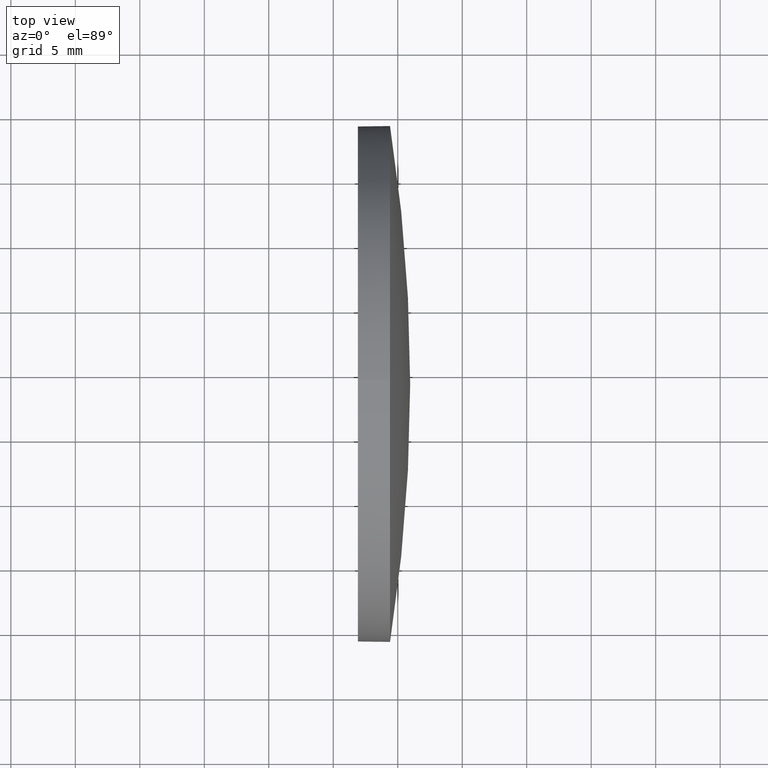
[diagram: clean part render]
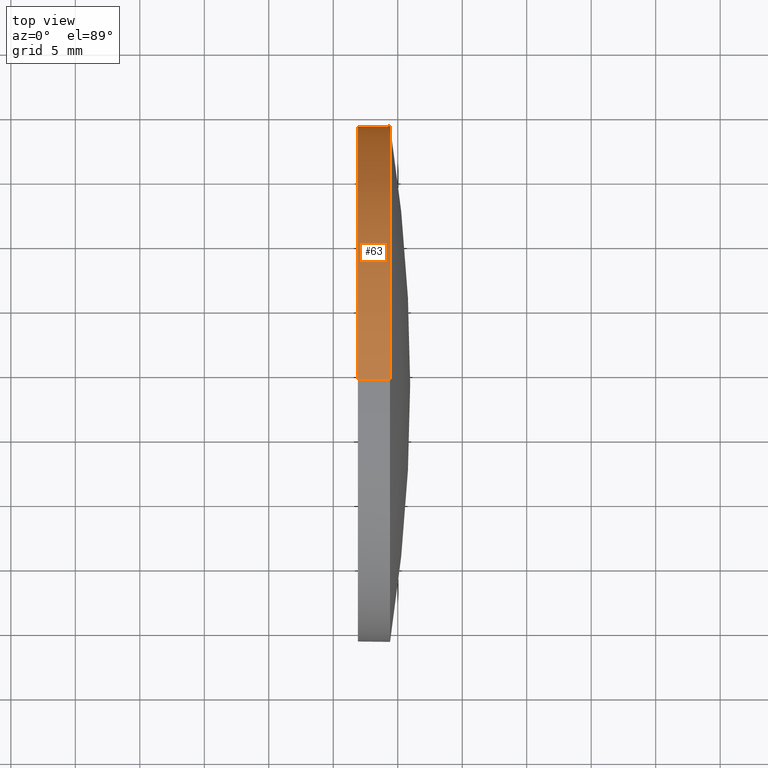
[diagram: same view with one face highlighted and labeled with its STEP entity id]
A machine part, top view. The second image highlights one B-rep face of the part: STEP entity #63.
In plain terms, the highlighted cylindrical surface (partial cylindrical patch) has radius 20 mm, axis along (-1, -0, -0).
Its self-contained STEP definition (entity closure, byte-faithful):
#1 = CYLINDRICAL_SURFACE ( 'NONE', #23, 19.99999999999996100 ) ;
#4 = VERTEX_POINT ( 'NONE', #36 ) ;
#6 = AXIS2_PLACEMENT_3D ( 'NONE', #144, #112, #175 ) ;
#9 = DIRECTION ( 'NONE',  ( 0.0000000000000000000, 0.0000000000000000000, 1.000000000000000000 ) ) ;
#10 = DIRECTION ( 'NONE',  ( -1.000000000000000000, -0.0000000000000000000, -0.0000000000000000000 ) ) ;
#13 = CARTESIAN_POINT ( 'NONE',  ( 872.3977979190676700, 269.1403647376604300, 19.99999999999996100 ) ) ;
#15 = AXIS2_PLACEMENT_3D ( 'NONE', #171, #185, #29 ) ;
#16 = LINE ( 'NONE', #13, #134 ) ;
#17 = CARTESIAN_POINT ( 'NONE',  ( 872.3977979190676700, 269.1403647376604300, -19.99999999999996100 ) ) ;
#19 = CARTESIAN_POINT ( 'NONE',  ( 872.3977979190676700, 269.1403647376604300, 0.0000000000000000000 ) ) ;
#22 = CARTESIAN_POINT ( 'NONE',  ( 881.9042952388408600, 269.1403647376604300, 19.99999999999996100 ) ) ;
#23 = AXIS2_PLACEMENT_3D ( 'NONE', #19, #106, #62 ) ;
#29 = DIRECTION ( 'NONE',  ( 0.0000000000000000000, 0.0000000000000000000, 1.000000000000000000 ) ) ;
#36 = CARTESIAN_POINT ( 'NONE',  ( 884.4042952388408600, 289.1403647376604300, 0.0000000000000000000 ) ) ;
#47 = CIRCLE ( 'NONE', #15, 19.99999999999996100 ) ;
#58 = LINE ( 'NONE', #17, #135 ) ;
#62 = DIRECTION ( 'NONE',  ( 0.0000000000000000000, 0.0000000000000000000, 1.000000000000000000 ) ) ;
#63 = ADVANCED_FACE ( 'NONE', ( #74 ), #1, .T. ) ;
#68 = VERTEX_POINT ( 'NONE', #169 ) ;
#69 = EDGE_CURVE ( 'NONE', #4, #136, #47, .T. ) ;
#72 = ORIENTED_EDGE ( 'NONE', *, *, #69, .T. ) ;
#74 = FACE_OUTER_BOUND ( 'NONE', #94, .T. ) ;
#75 = CIRCLE ( 'NONE', #6, 19.99999999999996100 ) ;
#78 = ORIENTED_EDGE ( 'NONE', *, *, #150, .F. ) ;
#80 = CARTESIAN_POINT ( 'NONE',  ( 884.4042952388408600, 269.1403647376604300, 19.99999999999996100 ) ) ;
#81 = VERTEX_POINT ( 'NONE', #80 ) ;
#84 = AXIS2_PLACEMENT_3D ( 'NONE', #153, #10, #9 ) ;
#87 = EDGE_CURVE ( 'NONE', #81, #4, #166, .T. ) ;
#94 = EDGE_LOOP ( 'NONE', ( #72, #101, #78, #117, #113 ) ) ;
#95 = DIRECTION ( 'NONE',  ( -1.000000000000000000, -0.0000000000000000000, -0.0000000000000000000 ) ) ;
#101 = ORIENTED_EDGE ( 'NONE', *, *, #132, .T. ) ;
#106 = DIRECTION ( 'NONE',  ( -1.000000000000000000, -0.0000000000000000000, -0.0000000000000000000 ) ) ;
#112 = DIRECTION ( 'NONE',  ( -1.000000000000000000, -0.0000000000000000000, -0.0000000000000000000 ) ) ;
#113 = ORIENTED_EDGE ( 'NONE', *, *, #87, .T. ) ;
#117 = ORIENTED_EDGE ( 'NONE', *, *, #142, .F. ) ;
#132 = EDGE_CURVE ( 'NONE', #136, #68, #58, .T. ) ;
#134 = VECTOR ( 'NONE', #95, 1000.000000000000000 ) ;
#135 = VECTOR ( 'NONE', #184, 1000.000000000000000 ) ;
#136 = VERTEX_POINT ( 'NONE', #182 ) ;
#142 = EDGE_CURVE ( 'NONE', #81, #181, #16, .T. ) ;
#144 = CARTESIAN_POINT ( 'NONE',  ( 881.9042952388408600, 269.1403647376604300, 0.0000000000000000000 ) ) ;
#150 = EDGE_CURVE ( 'NONE', #181, #68, #75, .T. ) ;
#153 = CARTESIAN_POINT ( 'NONE',  ( 884.4042952388408600, 269.1403647376604300, 0.0000000000000000000 ) ) ;
#166 = CIRCLE ( 'NONE', #84, 19.99999999999996100 ) ;
#169 = CARTESIAN_POINT ( 'NONE',  ( 881.9042952388408600, 269.1403647376604300, -19.99999999999996100 ) ) ;
#171 = CARTESIAN_POINT ( 'NONE',  ( 884.4042952388408600, 269.1403647376604300, 0.0000000000000000000 ) ) ;
#175 = DIRECTION ( 'NONE',  ( 0.0000000000000000000, 0.0000000000000000000, 1.000000000000000000 ) ) ;
#181 = VERTEX_POINT ( 'NONE', #22 ) ;
#182 = CARTESIAN_POINT ( 'NONE',  ( 884.4042952388408600, 269.1403647376604300, -19.99999999999996100 ) ) ;
#184 = DIRECTION ( 'NONE',  ( -1.000000000000000000, -0.0000000000000000000, -0.0000000000000000000 ) ) ;
#185 = DIRECTION ( 'NONE',  ( -1.000000000000000000, -0.0000000000000000000, -0.0000000000000000000 ) ) ;